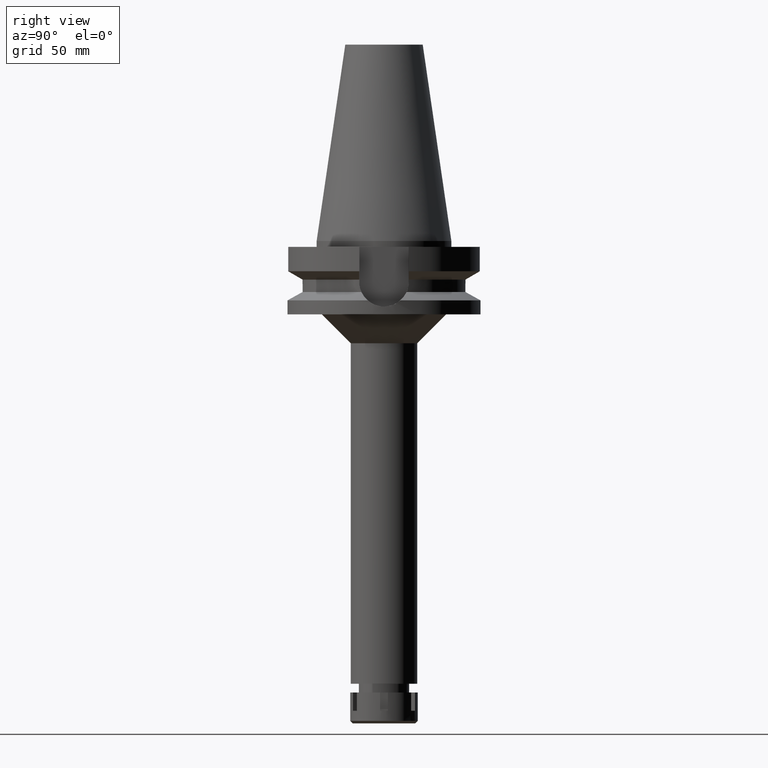
[diagram: clean part render]
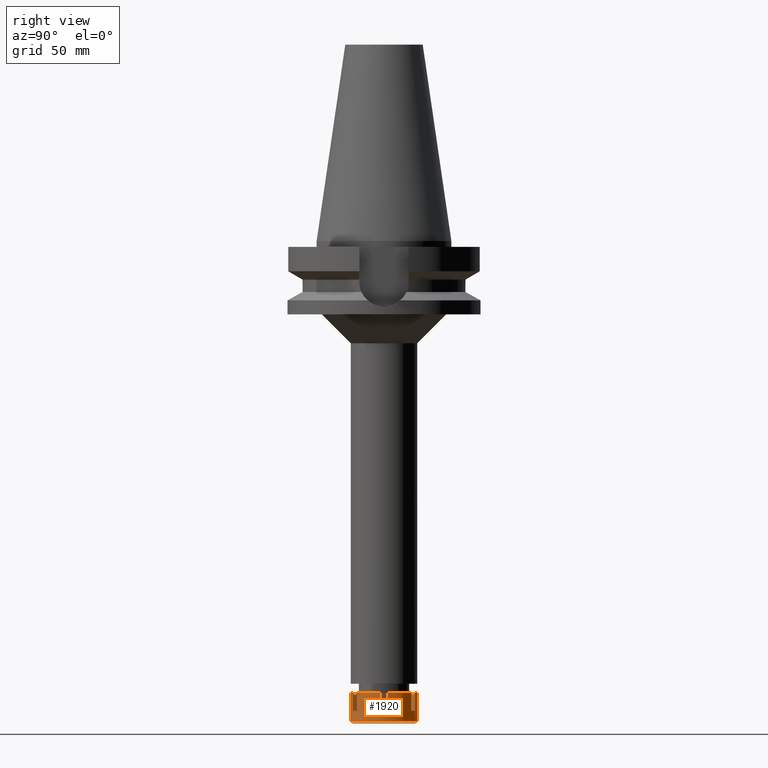
[diagram: same view with one face highlighted and labeled with its STEP entity id]
A machine part, right view. The second image highlights one B-rep face of the part: STEP entity #1920.
In plain terms, the highlighted cylindrical surface (edge-blend (fillet) strip) has radius 17.5 mm, axis along (0, 0, -1).
Its self-contained STEP definition (entity closure, byte-faithful):
#19 = LINE ( 'NONE', #529, #1860 ) ;
#33 = LINE ( 'NONE', #52, #1374 ) ;
#52 = CARTESIAN_POINT ( 'NONE',  ( 0.0000000000000000000, 17.50000000000000000, 0.0000000000000000000 ) ) ;
#72 = FACE_OUTER_BOUND ( 'NONE', #1894, .T. ) ;
#73 = DIRECTION ( 'NONE',  ( 0.0000000000000000000, 0.0000000000000000000, -1.000000000000000000 ) ) ;
#77 = DIRECTION ( 'NONE',  ( 0.0000000000000000000, 1.000000000000000000, 0.0000000000000000000 ) ) ;
#124 = EDGE_CURVE ( 'NONE', #2053, #1103, #1976, .T. ) ;
#133 = ORIENTED_EDGE ( 'NONE', *, *, #1644, .F. ) ;
#146 = DIRECTION ( 'NONE',  ( 0.0000000000000000000, 0.0000000000000000000, -1.000000000000000000 ) ) ;
#180 = ORIENTED_EDGE ( 'NONE', *, *, #3408, .T. ) ;
#211 = CARTESIAN_POINT ( 'NONE',  ( 0.0000000000000000000, 0.0000000000000000000, -9.500000000000000000 ) ) ;
#238 = CARTESIAN_POINT ( 'NONE',  ( 10.42472013293000010, 14.05614492490999901, 0.0000000000000000000 ) ) ;
#294 = ORIENTED_EDGE ( 'NONE', *, *, #124, .F. ) ;
#308 = VERTEX_POINT ( 'NONE', #2770 ) ;
#326 = AXIS2_PLACEMENT_3D ( 'NONE', #211, #1852, #3314 ) ;
#332 = CIRCLE ( 'NONE', #448, 17.50000000000000711 ) ;
#382 = DIRECTION ( 'NONE',  ( 0.0000000000000000000, 0.0000000000000000000, 1.000000000000000000 ) ) ;
#397 = CARTESIAN_POINT ( 'NONE',  ( 0.0000000000000000000, 17.50000000000000000, -14.75000000000000000 ) ) ;
#448 = AXIS2_PLACEMENT_3D ( 'NONE', #1498, #2092, #1840 ) ;
#455 = CIRCLE ( 'NONE', #3173, 17.50000000000000000 ) ;
#507 = AXIS2_PLACEMENT_3D ( 'NONE', #562, #1367, #776 ) ;
#509 = DIRECTION ( 'NONE',  ( 0.0000000000000000000, 0.0000000000000000000, -1.000000000000000000 ) ) ;
#529 = CARTESIAN_POINT ( 'NONE',  ( 0.0000000000000000000, -17.50000000000000000, 0.0000000000000000000 ) ) ;
#547 = CARTESIAN_POINT ( 'NONE',  ( 17.38533865071000051, -2.000000000000000000, -9.500000000000000000 ) ) ;
#557 = CARTESIAN_POINT ( 'NONE',  ( 6.960618517790000404, 16.05614492491000078, -9.500000000000000000 ) ) ;
#562 = CARTESIAN_POINT ( 'NONE',  ( 0.0000000000000000000, 0.0000000000000000000, 0.0000000000000000000 ) ) ;
#629 = CARTESIAN_POINT ( 'NONE',  ( 10.42472013293000010, -14.05614492490999901, -9.500000000000000000 ) ) ;
#657 = DIRECTION ( 'NONE',  ( 0.0000000000000000000, 0.0000000000000000000, -1.000000000000000000 ) ) ;
#688 = EDGE_CURVE ( 'NONE', #2762, #1387, #455, .T. ) ;
#708 = EDGE_CURVE ( 'NONE', #2161, #751, #3465, .T. ) ;
#732 = LINE ( 'NONE', #1301, #3515 ) ;
#751 = VERTEX_POINT ( 'NONE', #1425 ) ;
#776 = DIRECTION ( 'NONE',  ( 0.3977496295877935850, -0.9174939957093850573, 0.0000000000000000000 ) ) ;
#777 = ORIENTED_EDGE ( 'NONE', *, *, #3312, .T. ) ;
#782 = VECTOR ( 'NONE', #1153, 1000.000000000000000 ) ;
#786 = ORIENTED_EDGE ( 'NONE', *, *, #2644, .T. ) ;
#809 = EDGE_CURVE ( 'NONE', #2331, #1387, #33, .T. ) ;
#811 = VERTEX_POINT ( 'NONE', #2215 ) ;
#819 = DIRECTION ( 'NONE',  ( 0.0000000000000000000, 0.0000000000000000000, -1.000000000000000000 ) ) ;
#825 = CARTESIAN_POINT ( 'NONE',  ( 10.42472013293000010, -14.05614492490999901, -9.500000000000000000 ) ) ;
#832 = AXIS2_PLACEMENT_3D ( 'NONE', #2915, #146, #2862 ) ;
#863 = CARTESIAN_POINT ( 'NONE',  ( 0.0000000000000000000, -17.50000000000000000, -14.75000000000000000 ) ) ;
#884 = VECTOR ( 'NONE', #2999, 1000.000000000000000 ) ;
#892 = DIRECTION ( 'NONE',  ( 0.0000000000000000000, 0.0000000000000000000, -1.000000000000000000 ) ) ;
#937 = VERTEX_POINT ( 'NONE', #1726 ) ;
#1001 = VERTEX_POINT ( 'NONE', #2285 ) ;
#1008 = VECTOR ( 'NONE', #1062, 1000.000000000000000 ) ;
#1033 = ORIENTED_EDGE ( 'NONE', *, *, #688, .T. ) ;
#1062 = DIRECTION ( 'NONE',  ( 0.0000000000000000000, 0.0000000000000000000, 1.000000000000000000 ) ) ;
#1086 = VERTEX_POINT ( 'NONE', #2348 ) ;
#1103 = VERTEX_POINT ( 'NONE', #547 ) ;
#1109 = CARTESIAN_POINT ( 'NONE',  ( 6.960618517789000315, 16.05614492491000078, -9.500000000000000000 ) ) ;
#1127 = EDGE_CURVE ( 'NONE', #2053, #1632, #3446, .T. ) ;
#1132 = EDGE_CURVE ( 'NONE', #2376, #308, #2989, .T. ) ;
#1153 = DIRECTION ( 'NONE',  ( 0.0000000000000000000, 0.0000000000000000000, -1.000000000000000000 ) ) ;
#1169 = CYLINDRICAL_SURFACE ( 'NONE', #3387, 17.50000000000000000 ) ;
#1170 = DIRECTION ( 'NONE',  ( 0.5956982933099820299, 0.8032082814236758406, 0.0000000000000000000 ) ) ;
#1232 = VERTEX_POINT ( 'NONE', #2004 ) ;
#1264 = ORIENTED_EDGE ( 'NONE', *, *, #2308, .F. ) ;
#1301 = CARTESIAN_POINT ( 'NONE',  ( 6.960618517787000137, -16.05614492491000078, 0.0000000000000000000 ) ) ;
#1345 = CIRCLE ( 'NONE', #3201, 17.49999999999999645 ) ;
#1357 = EDGE_CURVE ( 'NONE', #2331, #751, #2219, .T. ) ;
#1367 = DIRECTION ( 'NONE',  ( 0.0000000000000000000, 0.0000000000000000000, -1.000000000000000000 ) ) ;
#1369 = CIRCLE ( 'NONE', #507, 17.49999999999999645 ) ;
#1374 = VECTOR ( 'NONE', #819, 1000.000000000000000 ) ;
#1375 = DIRECTION ( 'NONE',  ( 0.0000000000000000000, 0.0000000000000000000, 1.000000000000000000 ) ) ;
#1377 = ORIENTED_EDGE ( 'NONE', *, *, #1127, .T. ) ;
#1387 = VERTEX_POINT ( 'NONE', #397 ) ;
#1418 = ORIENTED_EDGE ( 'NONE', *, *, #3199, .T. ) ;
#1425 = CARTESIAN_POINT ( 'NONE',  ( 6.960618517789000315, 16.05614492491000078, 0.0000000000000000000 ) ) ;
#1451 = ORIENTED_EDGE ( 'NONE', *, *, #1132, .T. ) ;
#1463 = DIRECTION ( 'NONE',  ( 0.0000000000000000000, -1.000000000000000000, 0.0000000000000000000 ) ) ;
#1498 = CARTESIAN_POINT ( 'NONE',  ( 0.0000000000000000000, 0.0000000000000000000, -9.500000000000000000 ) ) ;
#1632 = VERTEX_POINT ( 'NONE', #1896 ) ;
#1644 = EDGE_CURVE ( 'NONE', #937, #811, #2724, .T. ) ;
#1653 = ORIENTED_EDGE ( 'NONE', *, *, #708, .F. ) ;
#1681 = CARTESIAN_POINT ( 'NONE',  ( 0.0000000000000000000, 0.0000000000000000000, 0.0000000000000000000 ) ) ;
#1687 = EDGE_CURVE ( 'NONE', #2376, #1632, #2448, .T. ) ;
#1726 = CARTESIAN_POINT ( 'NONE',  ( 10.42472013293000010, 14.05614492490999901, 0.0000000000000000000 ) ) ;
#1730 = CARTESIAN_POINT ( 'NONE',  ( 0.0000000000000000000, 0.0000000000000000000, -9.500000000000000000 ) ) ;
#1766 = DIRECTION ( 'NONE',  ( 0.3977496295879985877, 0.9174939957092961285, 0.0000000000000000000 ) ) ;
#1770 = VECTOR ( 'NONE', #1375, 1000.000000000000000 ) ;
#1783 = DIRECTION ( 'NONE',  ( 0.0000000000000000000, -1.000000000000000000, 0.0000000000000000000 ) ) ;
#1785 = CARTESIAN_POINT ( 'NONE',  ( 17.38533865071000051, -2.000000000000000000, 0.0000000000000000000 ) ) ;
#1840 = DIRECTION ( 'NONE',  ( 0.9934479228979277154, 0.1142857142857031660, 0.0000000000000000000 ) ) ;
#1852 = DIRECTION ( 'NONE',  ( 0.0000000000000000000, 0.0000000000000000000, -1.000000000000000000 ) ) ;
#1860 = VECTOR ( 'NONE', #1897, 1000.000000000000000 ) ;
#1894 = EDGE_LOOP ( 'NONE', ( #133, #180, #1264, #2717, #294, #1377, #2559, #1451, #2682, #786, #1418, #1033, #3327, #2667, #1653, #777 ) ) ;
#1896 = CARTESIAN_POINT ( 'NONE',  ( 10.42472013293000010, -14.05614492490999901, 0.0000000000000000000 ) ) ;
#1897 = DIRECTION ( 'NONE',  ( 0.0000000000000000000, 0.0000000000000000000, -1.000000000000000000 ) ) ;
#1920 = ADVANCED_FACE ( 'NONE', ( #72 ), #1169, .T. ) ;
#1976 = LINE ( 'NONE', #2778, #782 ) ;
#2004 = CARTESIAN_POINT ( 'NONE',  ( 6.960618517787000137, -16.05614492491000078, 0.0000000000000000000 ) ) ;
#2015 = EDGE_CURVE ( 'NONE', #1086, #1103, #332, .T. ) ;
#2053 = VERTEX_POINT ( 'NONE', #1785 ) ;
#2055 = CARTESIAN_POINT ( 'NONE',  ( 0.0000000000000000000, 0.0000000000000000000, -14.75000000000000000 ) ) ;
#2068 = LINE ( 'NONE', #2322, #3163 ) ;
#2092 = DIRECTION ( 'NONE',  ( 0.0000000000000000000, 0.0000000000000000000, -1.000000000000000000 ) ) ;
#2128 = EDGE_CURVE ( 'NONE', #1232, #308, #732, .T. ) ;
#2161 = VERTEX_POINT ( 'NONE', #557 ) ;
#2215 = CARTESIAN_POINT ( 'NONE',  ( 10.42472013291999922, 14.05614492490999901, -9.500000000000000000 ) ) ;
#2219 = CIRCLE ( 'NONE', #3273, 17.50000000000000000 ) ;
#2267 = CARTESIAN_POINT ( 'NONE',  ( 0.0000000000000000000, 0.0000000000000000000, 0.0000000000000000000 ) ) ;
#2285 = CARTESIAN_POINT ( 'NONE',  ( 17.38533865071000051, 2.000000000000000000, 0.0000000000000000000 ) ) ;
#2308 = EDGE_CURVE ( 'NONE', #1086, #1001, #2068, .T. ) ;
#2322 = CARTESIAN_POINT ( 'NONE',  ( 17.38533865071000051, 2.000000000000000000, -9.500000000000000000 ) ) ;
#2327 = AXIS2_PLACEMENT_3D ( 'NONE', #2551, #73, #1170 ) ;
#2331 = VERTEX_POINT ( 'NONE', #2601 ) ;
#2348 = CARTESIAN_POINT ( 'NONE',  ( 17.38533865071000051, 2.000000000000000000, -9.500000000000000000 ) ) ;
#2376 = VERTEX_POINT ( 'NONE', #629 ) ;
#2448 = LINE ( 'NONE', #825, #1008 ) ;
#2551 = CARTESIAN_POINT ( 'NONE',  ( 0.0000000000000000000, 0.0000000000000000000, 0.0000000000000000000 ) ) ;
#2559 = ORIENTED_EDGE ( 'NONE', *, *, #1687, .F. ) ;
#2601 = CARTESIAN_POINT ( 'NONE',  ( 0.0000000000000000000, 17.50000000000000000, 0.0000000000000000000 ) ) ;
#2616 = CIRCLE ( 'NONE', #2327, 17.50000000000000355 ) ;
#2644 = EDGE_CURVE ( 'NONE', #1232, #3286, #1369, .T. ) ;
#2667 = ORIENTED_EDGE ( 'NONE', *, *, #1357, .T. ) ;
#2682 = ORIENTED_EDGE ( 'NONE', *, *, #2128, .F. ) ;
#2717 = ORIENTED_EDGE ( 'NONE', *, *, #2015, .T. ) ;
#2724 = LINE ( 'NONE', #238, #884 ) ;
#2762 = VERTEX_POINT ( 'NONE', #863 ) ;
#2770 = CARTESIAN_POINT ( 'NONE',  ( 6.960618517787000137, -16.05614492491000078, -9.500000000000000000 ) ) ;
#2778 = CARTESIAN_POINT ( 'NONE',  ( 17.38533865071000051, -2.000000000000000000, 0.0000000000000000000 ) ) ;
#2850 = CARTESIAN_POINT ( 'NONE',  ( 0.0000000000000000000, -17.50000000000000000, 0.0000000000000000000 ) ) ;
#2862 = DIRECTION ( 'NONE',  ( 0.9934479228979277154, -0.1142857142857031660, 0.0000000000000000000 ) ) ;
#2915 = CARTESIAN_POINT ( 'NONE',  ( 0.0000000000000000000, 0.0000000000000000000, 0.0000000000000000000 ) ) ;
#2989 = CIRCLE ( 'NONE', #326, 17.50000000000000355 ) ;
#2999 = DIRECTION ( 'NONE',  ( 0.0000000000000000000, -1.121909582779000024E-14, -1.000000000000000000 ) ) ;
#3100 = DIRECTION ( 'NONE',  ( 0.0000000000000000000, 0.0000000000000000000, -1.000000000000000000 ) ) ;
#3163 = VECTOR ( 'NONE', #382, 1000.000000000000000 ) ;
#3173 = AXIS2_PLACEMENT_3D ( 'NONE', #2055, #3174, #1783 ) ;
#3174 = DIRECTION ( 'NONE',  ( 0.0000000000000000000, 0.0000000000000000000, 1.000000000000000000 ) ) ;
#3199 = EDGE_CURVE ( 'NONE', #3286, #2762, #19, .T. ) ;
#3201 = AXIS2_PLACEMENT_3D ( 'NONE', #1730, #657, #1766 ) ;
#3273 = AXIS2_PLACEMENT_3D ( 'NONE', #1681, #3100, #77 ) ;
#3286 = VERTEX_POINT ( 'NONE', #2850 ) ;
#3312 = EDGE_CURVE ( 'NONE', #2161, #811, #1345, .T. ) ;
#3314 = DIRECTION ( 'NONE',  ( 0.5956982933103188715, -0.8032082814234259294, 0.0000000000000000000 ) ) ;
#3327 = ORIENTED_EDGE ( 'NONE', *, *, #809, .F. ) ;
#3387 = AXIS2_PLACEMENT_3D ( 'NONE', #2267, #892, #1463 ) ;
#3408 = EDGE_CURVE ( 'NONE', #937, #1001, #2616, .T. ) ;
#3446 = CIRCLE ( 'NONE', #832, 17.50000000000000711 ) ;
#3465 = LINE ( 'NONE', #1109, #1770 ) ;
#3515 = VECTOR ( 'NONE', #509, 1000.000000000000000 ) ;